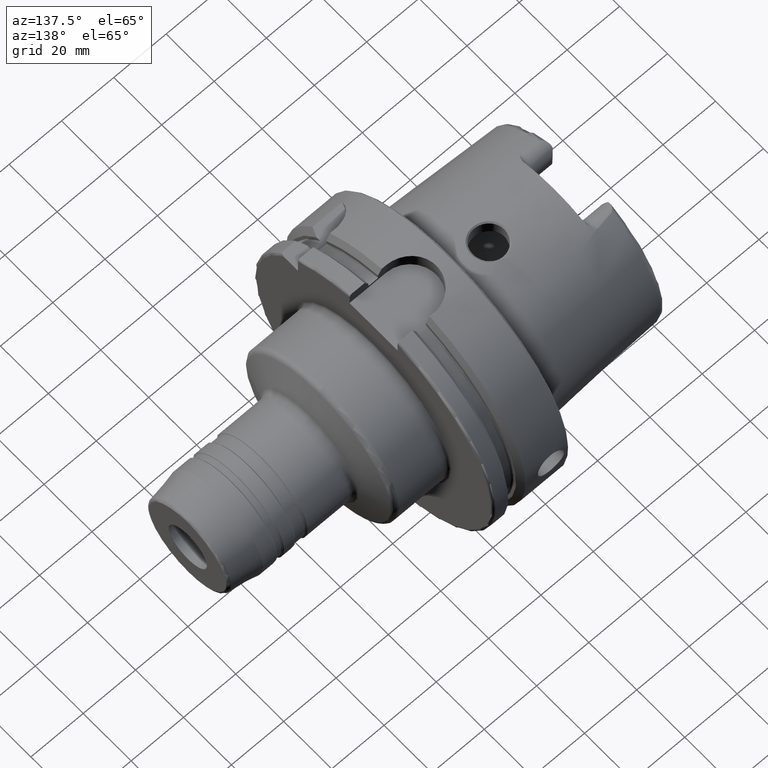
[diagram: clean part render]
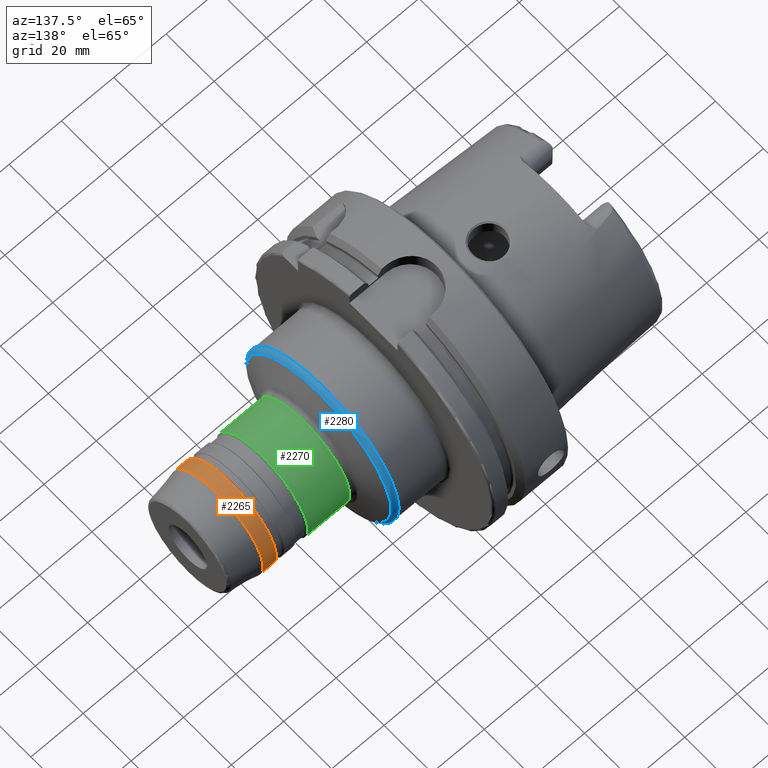
[diagram: same view with three faces highlighted in distinct colors, each labeled with its STEP entity id]
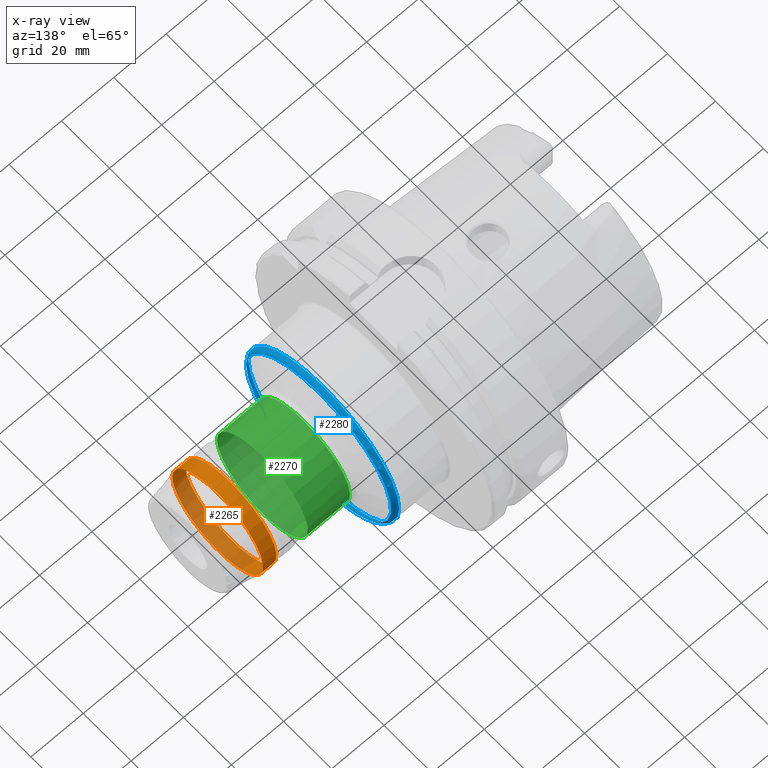
[diagram: x-ray of the same camera — body ghosted, the three highlighted faces saturated]
A machine part, auxiliary view with three faces highlighted in distinct colors.
The next image is the same camera in x-ray (body ghosted, the three faces saturated) — at least one of them is partly hidden behind the body in this view.
Their STEP definitions:

[orange] entity #2265 — the highlighted cylindrical surface (bore or boss wall) has radius 19 mm, axis along (1, 0, 0).
#209=FACE_OUTER_BOUND('',#343,.T.);
#343=EDGE_LOOP('',(#1552,#1553,#1554,#1555,#1556,#1557));
#483=LINE('',#3565,#594);
#594=VECTOR('',#2832,19.);
#728=CIRCLE('',#2452,19.);
#729=CIRCLE('',#2453,19.);
#731=CIRCLE('',#2456,19.);
#732=CIRCLE('',#2457,19.);
#903=VERTEX_POINT('',#3556);
#904=VERTEX_POINT('',#3557);
#905=VERTEX_POINT('',#3562);
#906=VERTEX_POINT('',#3563);
#1153=EDGE_CURVE('',#903,#904,#728,.T.);
#1154=EDGE_CURVE('',#904,#903,#729,.T.);
#1156=EDGE_CURVE('',#905,#906,#731,.T.);
#1157=EDGE_CURVE('',#905,#904,#483,.T.);
#1158=EDGE_CURVE('',#906,#905,#732,.T.);
#1552=ORIENTED_EDGE('',*,*,#1156,.F.);
#1553=ORIENTED_EDGE('',*,*,#1157,.T.);
#1554=ORIENTED_EDGE('',*,*,#1153,.F.);
#1555=ORIENTED_EDGE('',*,*,#1154,.F.);
#1556=ORIENTED_EDGE('',*,*,#1157,.F.);
#1557=ORIENTED_EDGE('',*,*,#1158,.F.);
#2217=CYLINDRICAL_SURFACE('',#2455,19.);
#2265=ADVANCED_FACE('',(#209),#2217,.T.);
#2452=AXIS2_PLACEMENT_3D('',#3558,#2822,#2823);
#2453=AXIS2_PLACEMENT_3D('',#3559,#2824,#2825);
#2455=AXIS2_PLACEMENT_3D('',#3561,#2828,#2829);
#2456=AXIS2_PLACEMENT_3D('',#3564,#2830,#2831);
#2457=AXIS2_PLACEMENT_3D('',#3566,#2833,#2834);
#2822=DIRECTION('center_axis',(-1.,0.,0.));
#2823=DIRECTION('ref_axis',(0.,-1.,1.83697019872103E-16));
#2824=DIRECTION('center_axis',(-1.,0.,0.));
#2825=DIRECTION('ref_axis',(0.,-1.,1.83697019872103E-16));
#2828=DIRECTION('center_axis',(1.,0.,0.));
#2829=DIRECTION('ref_axis',(0.,1.,0.));
#2830=DIRECTION('center_axis',(1.,0.,0.));
#2831=DIRECTION('ref_axis',(0.,-1.,1.83697019872103E-16));
#2832=DIRECTION('',(-1.,0.,0.));
#2833=DIRECTION('center_axis',(1.,0.,0.));
#2834=DIRECTION('ref_axis',(0.,-1.,1.83697019872103E-16));
#3556=CARTESIAN_POINT('',(83.5196152422707,-2.32682891837997E-15,19.));
#3557=CARTESIAN_POINT('',(83.5196152422707,-19.,-2.32682891837997E-15));
#3558=CARTESIAN_POINT('Origin',(83.5196152422707,0.,0.));
#3559=CARTESIAN_POINT('Origin',(83.5196152422707,0.,0.));
#3561=CARTESIAN_POINT('Origin',(85.9730557476797,0.,0.));
#3562=CARTESIAN_POINT('',(88.5699476972386,-19.,-2.32682891837997E-15));
#3563=CARTESIAN_POINT('',(88.5699476972386,-2.32682891837997E-15,19.));
#3564=CARTESIAN_POINT('Origin',(88.5699476972386,0.,0.));
#3565=CARTESIAN_POINT('',(85.9730557476797,-19.,-2.32682891837997E-15));
#3566=CARTESIAN_POINT('Origin',(88.5699476972386,0.,0.));

[blue] entity #2280 — the highlighted toroidal blend (fillet) surface has major radius 29.5 mm and minor (blend) radius 2 mm.
#173=TOROIDAL_SURFACE('',#2505,29.5,2.);
#224=FACE_OUTER_BOUND('',#360,.T.);
#360=EDGE_LOOP('',(#1642,#1643,#1644,#1645,#1646,#1647));
#756=CIRCLE('',#2492,31.5);
#757=CIRCLE('',#2493,31.5);
#764=CIRCLE('',#2503,30.1840402866513);
#765=CIRCLE('',#2504,30.1840402866513);
#766=CIRCLE('',#2506,2.);
#924=VERTEX_POINT('',#3621);
#925=VERTEX_POINT('',#3622);
#939=VERTEX_POINT('',#3656);
#940=VERTEX_POINT('',#3658);
#1185=EDGE_CURVE('',#924,#925,#756,.T.);
#1187=EDGE_CURVE('',#925,#924,#757,.T.);
#1203=EDGE_CURVE('',#940,#939,#764,.T.);
#1204=EDGE_CURVE('',#939,#940,#765,.T.);
#1205=EDGE_CURVE('',#940,#925,#766,.T.);
#1642=ORIENTED_EDGE('',*,*,#1203,.T.);
#1643=ORIENTED_EDGE('',*,*,#1204,.T.);
#1644=ORIENTED_EDGE('',*,*,#1205,.T.);
#1645=ORIENTED_EDGE('',*,*,#1187,.T.);
#1646=ORIENTED_EDGE('',*,*,#1185,.T.);
#1647=ORIENTED_EDGE('',*,*,#1205,.F.);
#2280=ADVANCED_FACE('',(#224),#173,.T.);
#2492=AXIS2_PLACEMENT_3D('',#3623,#2906,#2907);
#2493=AXIS2_PLACEMENT_3D('',#3625,#2909,#2910);
#2503=AXIS2_PLACEMENT_3D('',#3659,#2938,#2939);
#2504=AXIS2_PLACEMENT_3D('',#3660,#2940,#2941);
#2505=AXIS2_PLACEMENT_3D('',#3661,#2942,#2943);
#2506=AXIS2_PLACEMENT_3D('',#3662,#2944,#2945);
#2906=DIRECTION('center_axis',(1.,0.,0.));
#2907=DIRECTION('ref_axis',(0.,-1.,1.83697019872103E-16));
#2909=DIRECTION('center_axis',(1.,0.,0.));
#2910=DIRECTION('ref_axis',(0.,-1.,1.83697019872103E-16));
#2938=DIRECTION('center_axis',(-1.,0.,0.));
#2939=DIRECTION('ref_axis',(0.,-1.,3.06161699786838E-17));
#2940=DIRECTION('center_axis',(-1.,0.,0.));
#2941=DIRECTION('ref_axis',(0.,-1.,3.06161699786838E-17));
#2942=DIRECTION('center_axis',(1.,0.,0.));
#2943=DIRECTION('ref_axis',(0.,0.,-1.));
#2944=DIRECTION('center_axis',(0.,-1.,-1.22464679914735E-16));
#2945=DIRECTION('ref_axis',(0.,-1.22464679914735E-16,1.));
#3621=CARTESIAN_POINT('',(48.0499569952531,-31.5,-3.85763741731416E-15));
#3622=CARTESIAN_POINT('',(48.0499569952531,-3.85763741731416E-15,31.5));
#3623=CARTESIAN_POINT('Origin',(48.0499569952531,0.,0.));
#3625=CARTESIAN_POINT('Origin',(48.0499569952531,0.,0.));
#3656=CARTESIAN_POINT('',(49.9293422368249,-30.1840402866513,-3.69647883223823E-15));
#3658=CARTESIAN_POINT('',(49.9293422368249,-3.69647883223823E-15,30.1840402866513));
#3659=CARTESIAN_POINT('Origin',(49.9293422368249,0.,-4.62059854029779E-15));
#3660=CARTESIAN_POINT('Origin',(49.9293422368249,0.,-4.62059854029779E-15));
#3661=CARTESIAN_POINT('Origin',(48.0499569952531,0.,0.));
#3662=CARTESIAN_POINT('Origin',(48.0499569952531,-3.61270805748469E-15,
29.5));

[green] entity #2270 — the highlighted cylindrical surface (bore or boss wall) has radius 19 mm, axis along (1, 0, 0).
#214=FACE_OUTER_BOUND('',#348,.T.);
#348=EDGE_LOOP('',(#1582,#1583,#1584,#1585,#1586,#1587));
#485=LINE('',#3589,#596);
#596=VECTOR('',#2864,19.);
#740=CIRCLE('',#2469,19.);
#741=CIRCLE('',#2470,19.);
#742=CIRCLE('',#2472,19.);
#743=CIRCLE('',#2473,19.);
#911=VERTEX_POINT('',#3582);
#912=VERTEX_POINT('',#3584);
#913=VERTEX_POINT('',#3588);
#914=VERTEX_POINT('',#3590);
#1167=EDGE_CURVE('',#911,#912,#740,.T.);
#1168=EDGE_CURVE('',#912,#911,#741,.T.);
#1169=EDGE_CURVE('',#912,#913,#485,.T.);
#1170=EDGE_CURVE('',#914,#913,#742,.T.);
#1171=EDGE_CURVE('',#913,#914,#743,.T.);
#1582=ORIENTED_EDGE('',*,*,#1168,.F.);
#1583=ORIENTED_EDGE('',*,*,#1169,.T.);
#1584=ORIENTED_EDGE('',*,*,#1170,.F.);
#1585=ORIENTED_EDGE('',*,*,#1171,.F.);
#1586=ORIENTED_EDGE('',*,*,#1169,.F.);
#1587=ORIENTED_EDGE('',*,*,#1167,.F.);
#2219=CYLINDRICAL_SURFACE('',#2471,19.);
#2270=ADVANCED_FACE('',(#214),#2219,.T.);
#2469=AXIS2_PLACEMENT_3D('',#3585,#2858,#2859);
#2470=AXIS2_PLACEMENT_3D('',#3586,#2860,#2861);
#2471=AXIS2_PLACEMENT_3D('',#3587,#2862,#2863);
#2472=AXIS2_PLACEMENT_3D('',#3591,#2865,#2866);
#2473=AXIS2_PLACEMENT_3D('',#3592,#2867,#2868);
#2858=DIRECTION('center_axis',(1.,0.,0.));
#2859=DIRECTION('ref_axis',(0.,-1.,1.83697019872103E-16));
#2860=DIRECTION('center_axis',(1.,0.,0.));
#2861=DIRECTION('ref_axis',(0.,-1.,1.83697019872103E-16));
#2862=DIRECTION('center_axis',(1.,0.,0.));
#2863=DIRECTION('ref_axis',(0.,1.,0.));
#2864=DIRECTION('',(-1.,0.,0.));
#2865=DIRECTION('center_axis',(-1.,0.,0.));
#2866=DIRECTION('ref_axis',(0.,-1.,1.83697019872103E-16));
#2867=DIRECTION('center_axis',(-1.,0.,0.));
#2868=DIRECTION('ref_axis',(0.,-1.,1.83697019872103E-16));
#3582=CARTESIAN_POINT('',(71.4803847577293,-2.32682891837997E-15,19.));
#3584=CARTESIAN_POINT('',(71.4803847577293,-19.,-2.32682891837997E-15));
#3585=CARTESIAN_POINT('Origin',(71.4803847577293,0.,0.));
#3586=CARTESIAN_POINT('Origin',(71.4803847577293,0.,0.));
#3587=CARTESIAN_POINT('Origin',(62.8556624327026,0.,0.));
#3588=CARTESIAN_POINT('',(55.4004150764194,-19.,-2.32682891837997E-15));
#3589=CARTESIAN_POINT('',(62.8556624327026,-19.,-2.32682891837997E-15));
#3590=CARTESIAN_POINT('',(55.4004150764194,-2.32682891837997E-15,19.));
#3591=CARTESIAN_POINT('Origin',(55.4004150764194,0.,0.));
#3592=CARTESIAN_POINT('Origin',(55.4004150764194,0.,0.));